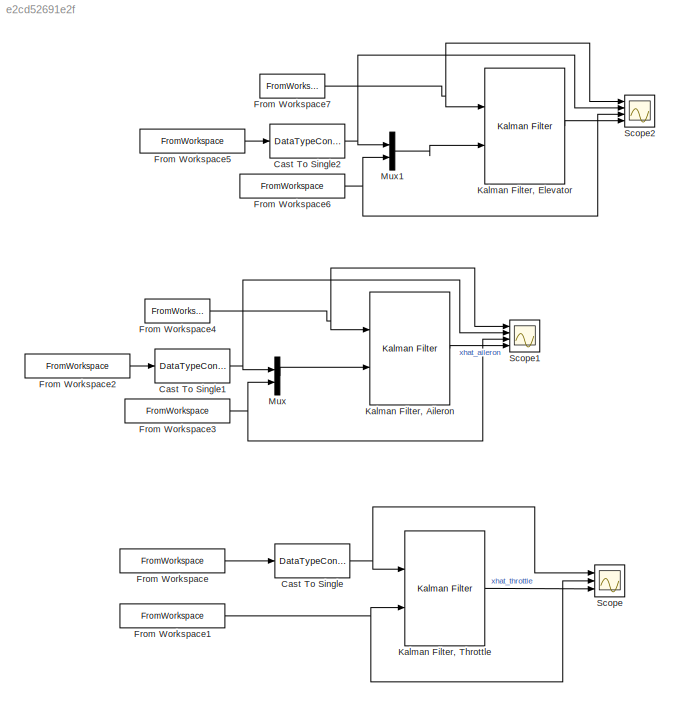
MODEL slx_e2cd52691e2f
KIND model
CONFIG AbsTol = auto
CONFIG EnableMultiTasking = off
CONFIG FixedStep = auto
CONFIG MaxStep = auto
CONFIG MinStep = auto
CONFIG RelTol = 1e-3
CONFIG SampleTimeConstraint = Unconstrained
CONFIG SolverName = VariableStepAuto
CONFIG StartTime = 0.0
CONFIG StopTime = 15
BLOCK [DataTypeConversion] Cast To Single
  OutDataTypeStr = single
  RndMeth = Floor
  SaturateOnIntegerOverflow = off
BLOCK [DataTypeConversion] Cast To Single1
  OutDataTypeStr = single
  RndMeth = Floor
  SaturateOnIntegerOverflow = off
BLOCK [DataTypeConversion] Cast To Single2
  OutDataTypeStr = single
  RndMeth = Floor
  SaturateOnIntegerOverflow = off
BLOCK [FromWorkspace] From Workspace
  SampleTime = 1/200
  VariableName = mydata.rt_wdot_meas
BLOCK [FromWorkspace] From Workspace1
  SampleTime = 1/200
  VariableName = mydata.rt_Pbz_meas
BLOCK [FromWorkspace] From Workspace2
  SampleTime = 1/200
  VariableName = mydata.rt_v_meas
BLOCK [FromWorkspace] From Workspace3
  SampleTime = 1/200
  VariableName = mydata.rt_phi_meas
BLOCK [FromWorkspace] From Workspace4
  SampleTime = 1/200
  VariableName = mydata.rt_p
BLOCK [FromWorkspace] From Workspace5
  SampleTime = 1/200
  VariableName = mydata.rt_u_meas
BLOCK [FromWorkspace] From Workspace6
  SampleTime = 1/200
  VariableName = mydata.rt_theta_meas
BLOCK [FromWorkspace] From Workspace7
  SampleTime = 1/200
  VariableName = mydata.rt_q
BLOCK [Reference] Kalman Filter, Aileron  REF=ctrlSharedLib/Kalman Filter
  Ports = [2, 1]
  SourceBlock = ctrlSharedLib/Kalman Filter
  SourceProductBaseCode = CT,ID
  SourceType = ctrlKalmanFilter
BLOCK [Reference] Kalman Filter, Elevator  REF=ctrlSharedLib/Kalman Filter
  Ports = [2, 1]
  SourceBlock = ctrlSharedLib/Kalman Filter
  SourceProductBaseCode = CT,ID
  SourceType = ctrlKalmanFilter
BLOCK [Reference] Kalman Filter, Throttle  REF=ctrlSharedLib/Kalman Filter
  Ports = [2, 1]
  SourceBlock = ctrlSharedLib/Kalman Filter
  SourceProductBaseCode = CT,ID
  SourceType = ctrlKalmanFilter
BLOCK [Mux] Mux
  DisplayOption = bar
  Inputs = 2
  Ports = [2, 1]
BLOCK [Mux] Mux1
  DisplayOption = bar
  Inputs = 2
  Ports = [2, 1]
BLOCK [Scope] Scope
  Floating = off
  NumInputPorts = 3
  Ports = [3]
  ScopeSpecificationString = Simulink.scopes.TimeScopeBlockCfg('CurrentConfiguration', extmgr.ConfigurationSet(extmgr.Configuration('Core','General UI',true),extmgr.Configuration('Core','Source UI',true),extmgr.Configuration('Sources','WiredSimulink',true),extmgr.Configuration('Visuals','Time Domain',true,'SerializedDisplays',{struct('MinYLimReal','-2','MaxYLimReal','1','YLabelReal','','MinYLimMag','0.00000','MaxYLimMag','11....<+1573ch>
BLOCK [Scope] Scope1
  Floating = off
  NumInputPorts = 4
  Ports = [4]
  ScopeSpecificationString = Simulink.scopes.TimeScopeBlockCfg('CurrentConfiguration', extmgr.ConfigurationSet(extmgr.Configuration('Core','General UI',true),extmgr.Configuration('Core','Source UI',true),extmgr.Configuration('Sources','WiredSimulink',true,'DataLoggingVariableName','ScopeData1'),extmgr.Configuration('Visuals','Time Domain',true,'SerializedDisplays',{struct('MinYLimReal','-4.12697','MaxYLimReal','4.11198','YLab...<+1657ch>
BLOCK [Scope] Scope2
  Floating = off
  NumInputPorts = 4
  Ports = [4]
  ScopeSpecificationString = Simulink.scopes.TimeScopeBlockCfg('CurrentConfiguration', extmgr.ConfigurationSet(extmgr.Configuration('Core','General UI',true),extmgr.Configuration('Core','Source UI',true),extmgr.Configuration('Sources','WiredSimulink',true,'DataLoggingVariableName','ScopeData2'),extmgr.Configuration('Visuals','Time Domain',true,'SerializedDisplays',{struct('MinYLimReal','-4.12697','MaxYLimReal','4.11198','YLab...<+1666ch>
NET Cast To Single1:1 -> Mux:1, Scope1:2
NET Cast To Single2:1 -> Mux1:1, Scope2:2
NET Cast To Single:1 -> Kalman Filter, Throttle:1, Scope:1
NET From Workspace1:1 -> Kalman Filter, Throttle:2, Scope:2
LINE From Workspace2:1 -> Cast To Single1:1
NET From Workspace3:1 -> Mux:2, Scope1:3
NET From Workspace4:1 -> Kalman Filter, Aileron:1, Scope1:1
LINE From Workspace5:1 -> Cast To Single2:1
NET From Workspace6:1 -> Mux1:2, Scope2:3
NET From Workspace7:1 -> Kalman Filter, Elevator:1, Scope2:1
LINE From Workspace:1 -> Cast To Single:1
LINE Kalman Filter, Aileron:1 -> Scope1:4
LINE Kalman Filter, Elevator:1 -> Scope2:4
LINE Kalman Filter, Throttle:1 -> Scope:3
LINE Mux1:1 -> Kalman Filter, Elevator:2
LINE Mux:1 -> Kalman Filter, Aileron:2
note: NET lines group one-source signal fan-out (src -> all destinations, sorted); 1:1 wires keep LINE
